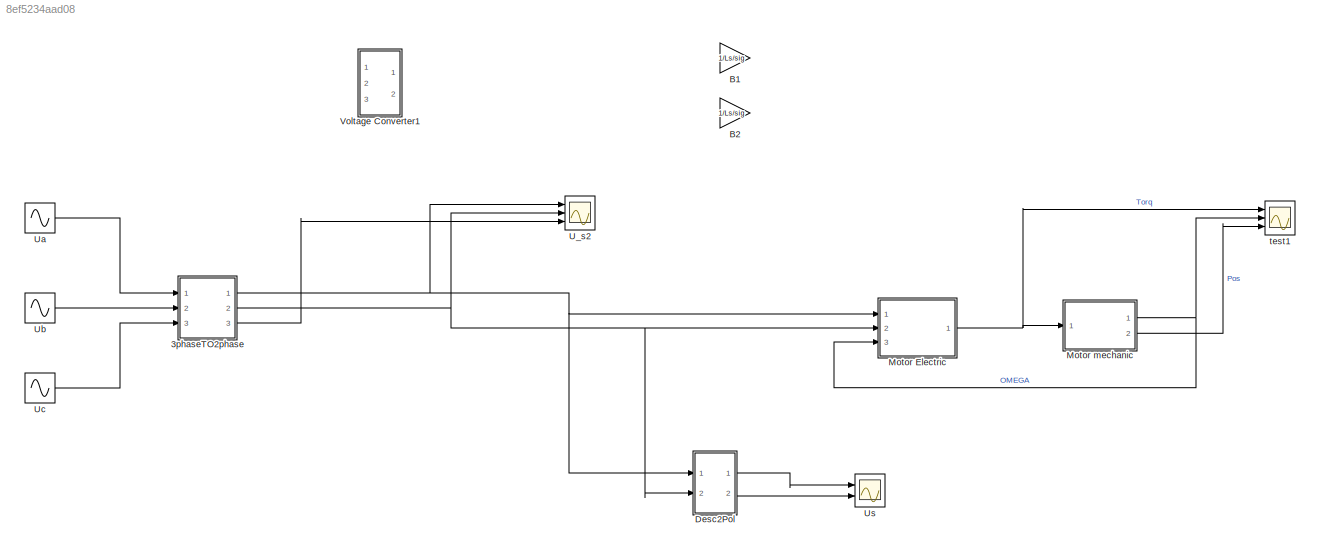
MODEL slx_8ef5234aad08
KIND model
CONFIG AbsTol = auto
CONFIG FixedStep = 0.0001
CONFIG MaxStep = auto
CONFIG MinStep = auto
CONFIG RelTol = 1e-3
CONFIG SampleTimeConstraint = Unconstrained
CONFIG Solver = FixedStepAuto
CONFIG SolverMode = Auto
CONFIG SolverName = FixedStepAuto
CONFIG StartTime = 0.0
CONFIG StopTime = 5
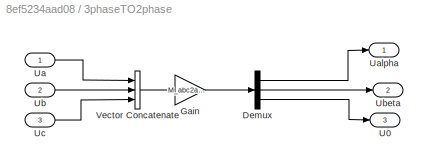
BLOCK [SubSystem] 3phaseTO2phase 
  Ports = [3, 3]
  RequestExecContextInheritance = off
  Variant = off
BLOCK [Demux] 3phaseTO2phase /Demux
  DisplayOption = bar
  Outputs = 3
  Ports = [1, 3]
BLOCK [Gain] 3phaseTO2phase /Gain
  Gain = M_abc2ab0
  Multiplication = Matrix(K*u)
  OutDataTypeStr = Inherit: Inherit via internal rule
  ParamDataTypeStr = Inherit: Inherit via internal rule
  SaturateOnIntegerOverflow = off
BLOCK [Outport] 3phaseTO2phase /U0
  IconDisplay = Port number
  Port = 3
BLOCK [Inport] 3phaseTO2phase /Ua
  IconDisplay = Port number
BLOCK [Outport] 3phaseTO2phase /Ualpha
  IconDisplay = Port number
BLOCK [Inport] 3phaseTO2phase /Ub
  IconDisplay = Port number
  Port = 2
BLOCK [Outport] 3phaseTO2phase /Ubeta
  IconDisplay = Port number
  Port = 2
BLOCK [Inport] 3phaseTO2phase /Uc
  IconDisplay = Port number
  Port = 3
BLOCK [Concatenate] 3phaseTO2phase /Vector Concatenate
  NumInputs = 3
  Ports = [3, 1]
BLOCK [Gain] B1
  Gain = 1/Ls/sig
  Multiplication = Matrix(K*u)
  OutDataTypeStr = Inherit: Inherit via internal rule
  ParamDataTypeStr = Inherit: Inherit via internal rule
  SaturateOnIntegerOverflow = off
BLOCK [Gain] B2
  Gain = 1/Ls/sig
  Multiplication = Matrix(K*u)
  OutDataTypeStr = Inherit: Inherit via internal rule
  ParamDataTypeStr = Inherit: Inherit via internal rule
  SaturateOnIntegerOverflow = off
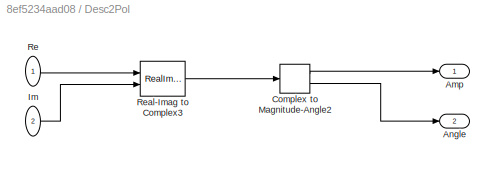
BLOCK [SubSystem] Desc2Pol
  Ports = [2, 2]
  RequestExecContextInheritance = off
  Variant = off
BLOCK [Outport] Desc2Pol/Amp
  IconDisplay = Port number
BLOCK [Outport] Desc2Pol/Angle
  IconDisplay = Port number
  Port = 2
BLOCK [ComplexToMagnitudeAngle] Desc2Pol/Complex to Magnitude-Angle2
  Ports = [1, 2]
BLOCK [Inport] Desc2Pol/Im
  IconDisplay = Port number
  Port = 2
BLOCK [Inport] Desc2Pol/Re
  IconDisplay = Port number
BLOCK [RealImagToComplex] Desc2Pol/Real-Imag to Complex3
  Ports = [2, 1]
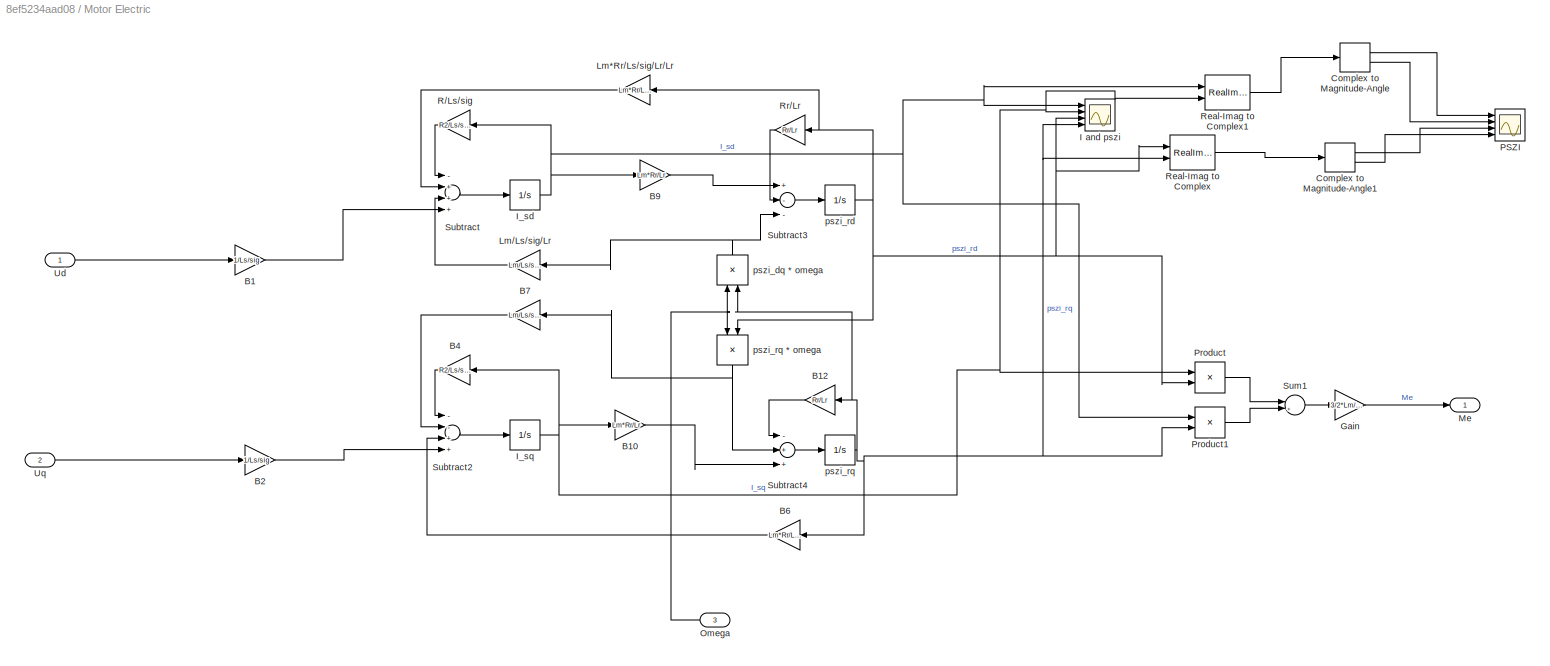
BLOCK [SubSystem] Motor Electric
  Ports = [3, 1]
  RequestExecContextInheritance = off
  Variant = off
BLOCK [Gain] Motor Electric/B1
  Gain = 1/Ls/sig
  Multiplication = Matrix(K*u)
  OutDataTypeStr = Inherit: Inherit via internal rule
  ParamDataTypeStr = Inherit: Inherit via internal rule
  SaturateOnIntegerOverflow = off
BLOCK [Gain] Motor Electric/B10
  Gain = Lm*Rr/Lr
  Multiplication = Matrix(K*u)
  OutDataTypeStr = Inherit: Inherit via internal rule
  ParamDataTypeStr = Inherit: Inherit via internal rule
  SaturateOnIntegerOverflow = off
BLOCK [Gain] Motor Electric/B12
  Gain = Rr/Lr
  Multiplication = Matrix(K*u)
  OutDataTypeStr = Inherit: Inherit via internal rule
  ParamDataTypeStr = Inherit: Inherit via internal rule
  SaturateOnIntegerOverflow = off
BLOCK [Gain] Motor Electric/B2
  Gain = 1/Ls/sig
  Multiplication = Matrix(K*u)
  OutDataTypeStr = Inherit: Inherit via internal rule
  ParamDataTypeStr = Inherit: Inherit via internal rule
  SaturateOnIntegerOverflow = off
BLOCK [Gain] Motor Electric/B4
  Gain = R2/Ls/sig
  Multiplication = Matrix(K*u)
  OutDataTypeStr = Inherit: Inherit via internal rule
  ParamDataTypeStr = Inherit: Inherit via internal rule
  SaturateOnIntegerOverflow = off
BLOCK [Gain] Motor Electric/B6
  Gain = Lm*Rr/Ls/sig/Lr/Lr
  Multiplication = Matrix(K*u)
  OutDataTypeStr = Inherit: Inherit via internal rule
  ParamDataTypeStr = Inherit: Inherit via internal rule
  SaturateOnIntegerOverflow = off
BLOCK [Gain] Motor Electric/B7
  Gain = Lm/Ls/sig/Lr
  Multiplication = Matrix(K*u)
  OutDataTypeStr = Inherit: Inherit via internal rule
  ParamDataTypeStr = Inherit: Inherit via internal rule
  SaturateOnIntegerOverflow = off
BLOCK [Gain] Motor Electric/B9
  Gain = Lm*Rr/Lr
  Multiplication = Matrix(K*u)
  OutDataTypeStr = Inherit: Inherit via internal rule
  ParamDataTypeStr = Inherit: Inherit via internal rule
  SaturateOnIntegerOverflow = off
BLOCK [ComplexToMagnitudeAngle] Motor Electric/Complex to Magnitude-Angle
  Ports = [1, 2]
BLOCK [ComplexToMagnitudeAngle] Motor Electric/Complex to Magnitude-Angle1
  Ports = [1, 2]
BLOCK [Gain] Motor Electric/Gain
  Gain = 3/2*Lm/Lr
  OutDataTypeStr = Inherit: Inherit via internal rule
  ParamDataTypeStr = Inherit: Inherit via internal rule
  SaturateOnIntegerOverflow = off
BLOCK [Scope] Motor Electric/I and pszi
  NumInputPorts = 4
  Ports = [4]
  ScopeSpecificationString = Simulink.scopes.TimeScopeBlockCfg('CurrentConfiguration', extmgr.ConfigurationSet(extmgr.Configuration('Core','General UI',true),extmgr.Configuration('Core','Source UI',true),extmgr.Configuration('Sources','WiredSimulink',true),extmgr.Configuration('Visuals','Time Domain',true,'SerializedDisplays',{struct('MinYLimReal','-96.38058','MaxYLimReal','113.50421','YLabelReal','','MinYLimMag','0.00000','M...<+1461ch>
BLOCK [Integrator] Motor Electric/I_sd
  Ports = [1, 1]
BLOCK [Integrator] Motor Electric/I_sq
  Ports = [1, 1]
BLOCK [Gain] Motor Electric/Lm*Rr//Ls//sig//Lr//Lr
  Gain = Lm*Rr/Ls/sig/Lr/Lr
  Multiplication = Matrix(K*u)
  OutDataTypeStr = Inherit: Inherit via internal rule
  ParamDataTypeStr = Inherit: Inherit via internal rule
  SaturateOnIntegerOverflow = off
BLOCK [Gain] Motor Electric/Lm//Ls//sig//Lr
  Gain = Lm/Ls/sig/Lr
  Multiplication = Matrix(K*u)
  OutDataTypeStr = Inherit: Inherit via internal rule
  ParamDataTypeStr = Inherit: Inherit via internal rule
  SaturateOnIntegerOverflow = off
BLOCK [Outport] Motor Electric/Me
  IconDisplay = Port number
BLOCK [Inport] Motor Electric/Omega
  IconDisplay = Port number
  Port = 3
BLOCK [Scope] Motor Electric/PSZI
  NumInputPorts = 4
  Ports = [4]
  ScopeSpecificationString = Simulink.scopes.TimeScopeBlockCfg('CurrentConfiguration', extmgr.ConfigurationSet(extmgr.Configuration('Core','General UI',true),extmgr.Configuration('Core','Source UI',true),extmgr.Configuration('Sources','WiredSimulink',true,'DataLoggingVariableName','ScopeData2'),extmgr.Configuration('Visuals','Time Domain',true,'SerializedDisplays',{struct('MinYLimReal','-15.09969','MaxYLimReal','104.48314','Y...<+1618ch>
BLOCK [Product] Motor Electric/Product
  InputSameDT = off
  OutDataTypeStr = Inherit: Inherit via internal rule
  Ports = [2, 1]
  RndMeth = Floor
  SaturateOnIntegerOverflow = off
BLOCK [Product] Motor Electric/Product1
  InputSameDT = off
  OutDataTypeStr = Inherit: Inherit via internal rule
  Ports = [2, 1]
  RndMeth = Floor
  SaturateOnIntegerOverflow = off
BLOCK [Gain] Motor Electric/R//Ls//sig
  Gain = R2/Ls/sig
  Multiplication = Matrix(K*u)
  OutDataTypeStr = Inherit: Inherit via internal rule
  ParamDataTypeStr = Inherit: Inherit via internal rule
  SaturateOnIntegerOverflow = off
BLOCK [RealImagToComplex] Motor Electric/Real-Imag to Complex
  Ports = [2, 1]
BLOCK [RealImagToComplex] Motor Electric/Real-Imag to Complex1
  Ports = [2, 1]
BLOCK [Gain] Motor Electric/Rr//Lr
  Gain = Rr/Lr
  Multiplication = Matrix(K*u)
  OutDataTypeStr = Inherit: Inherit via internal rule
  ParamDataTypeStr = Inherit: Inherit via internal rule
  SaturateOnIntegerOverflow = off
BLOCK [Sum] Motor Electric/Subtract
  InputSameDT = off
  Inputs = -+++
  OutDataTypeStr = Inherit: Inherit via internal rule
  Ports = [4, 1]
  SaturateOnIntegerOverflow = off
BLOCK [Sum] Motor Electric/Subtract2
  InputSameDT = off
  Inputs = --++
  OutDataTypeStr = Inherit: Inherit via internal rule
  Ports = [4, 1]
  SaturateOnIntegerOverflow = off
BLOCK [Sum] Motor Electric/Subtract3
  InputSameDT = off
  Inputs = +--
  OutDataTypeStr = Inherit: Inherit via internal rule
  Ports = [3, 1]
  SaturateOnIntegerOverflow = off
BLOCK [Sum] Motor Electric/Subtract4
  InputSameDT = off
  Inputs = -++
  OutDataTypeStr = Inherit: Inherit via internal rule
  Ports = [3, 1]
  SaturateOnIntegerOverflow = off
BLOCK [Sum] Motor Electric/Sum1
  IconShape = round
  InputSameDT = off
  Inputs = |+-|
  OutDataTypeStr = Inherit: Inherit via internal rule
  Ports = [2, 1]
  SaturateOnIntegerOverflow = off
BLOCK [Inport] Motor Electric/Ud
  IconDisplay = Port number
BLOCK [Inport] Motor Electric/Uq
  IconDisplay = Port number
  Port = 2
BLOCK [Product] Motor Electric/pszi_dq * omega
  InputSameDT = off
  OutDataTypeStr = Inherit: Inherit via internal rule
  Ports = [2, 1]
  RndMeth = Floor
  SaturateOnIntegerOverflow = off
BLOCK [Integrator] Motor Electric/pszi_rd
  Ports = [1, 1]
BLOCK [Integrator] Motor Electric/pszi_rq 
  Ports = [1, 1]
BLOCK [Product] Motor Electric/pszi_rq * omega
  InputSameDT = off
  OutDataTypeStr = Inherit: Inherit via internal rule
  Ports = [2, 1]
  RndMeth = Floor
  SaturateOnIntegerOverflow = off
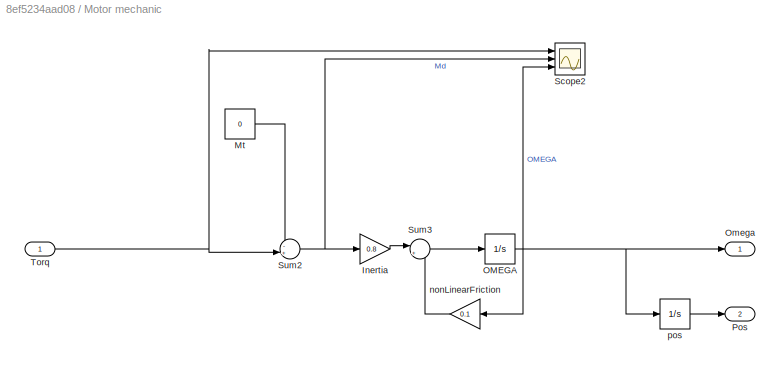
BLOCK [SubSystem] Motor mechanic
  Ports = [1, 2]
  RequestExecContextInheritance = off
  Variant = off
BLOCK [Gain] Motor mechanic/Inertia
  Gain = 0.8
  OutDataTypeStr = Inherit: Inherit via internal rule
  ParamDataTypeStr = Inherit: Inherit via internal rule
  SaturateOnIntegerOverflow = off
BLOCK [Constant] Motor mechanic/Mt
  Value = 0
BLOCK [Integrator] Motor mechanic/OMEGA
  Ports = [1, 1]
BLOCK [Outport] Motor mechanic/Omega
  IconDisplay = Port number
BLOCK [Outport] Motor mechanic/Pos
  IconDisplay = Port number
  Port = 2
BLOCK [Scope] Motor mechanic/Scope2
  NumInputPorts = 3
  Ports = [3]
  ScopeSpecificationString = Simulink.scopes.TimeScopeBlockCfg('CurrentConfiguration', extmgr.ConfigurationSet(extmgr.Configuration('Core','General UI',true),extmgr.Configuration('Core','Source UI',true),extmgr.Configuration('Sources','WiredSimulink',true,'DataLoggingVariableName','ScopeData2'),extmgr.Configuration('Visuals','Time Domain',true,'SerializedDisplays',{struct('MinYLimReal','90.00000','MaxYLimReal','110.00000','YL...<+2799ch>
BLOCK [Sum] Motor mechanic/Sum2
  IconShape = round
  InputSameDT = off
  Inputs = -+|
  OutDataTypeStr = Inherit: Inherit via internal rule
  Ports = [2, 1]
  SaturateOnIntegerOverflow = off
BLOCK [Sum] Motor mechanic/Sum3
  IconShape = round
  InputSameDT = off
  Inputs = |+-
  OutDataTypeStr = Inherit: Inherit via internal rule
  Ports = [2, 1]
  SaturateOnIntegerOverflow = off
BLOCK [Inport] Motor mechanic/Torq 
  IconDisplay = Port number
BLOCK [Gain] Motor mechanic/nonLinearFriction
  Gain = 0.1
  OutDataTypeStr = Inherit: Inherit via internal rule
  ParamDataTypeStr = Inherit: Inherit via internal rule
  SaturateOnIntegerOverflow = off
BLOCK [Integrator] Motor mechanic/pos
  Ports = [1, 1]
  WrapState = on
BLOCK [Scope] U_s2
  NumInputPorts = 3
  Ports = [3]
  ScopeSpecificationString = Simulink.scopes.TimeScopeBlockCfg('CurrentConfiguration', extmgr.ConfigurationSet(extmgr.Configuration('Core','General UI',true),extmgr.Configuration('Core','Source UI',true),extmgr.Configuration('Sources','WiredSimulink',true,'DataLoggingVariableName','ScopeData4'),extmgr.Configuration('Visuals','Time Domain',true,'SerializedDisplays',{struct('MinYLimReal','-99.99999','MaxYLimReal','99.99994','YL...<+1480ch>
BLOCK [Sin] Ua
  Amplitude = 80
  Frequency = 314
  Ports = [0, 1]
  SampleTime = 0
BLOCK [Sin] Ub
  Amplitude = 80
  Frequency = 314
  Phase = -2*pi/3
  Ports = [0, 1]
  SampleTime = 0
BLOCK [Sin] Uc
  Amplitude = 80
  Frequency = 314
  Phase = 2*pi/3
  Ports = [0, 1]
  SampleTime = 0
BLOCK [Scope] Us
  NumInputPorts = 2
  Ports = [2]
  ScopeSpecificationString = Simulink.scopes.TimeScopeBlockCfg('CurrentConfiguration', extmgr.ConfigurationSet(extmgr.Configuration('Core','General UI',true),extmgr.Configuration('Core','Source UI',true),extmgr.Configuration('Sources','WiredSimulink',true,'DataLoggingVariableName','ScopeData5'),extmgr.Configuration('Visuals','Time Domain',true,'SerializedDisplays',{struct('MinYLimReal','-100.00000','MaxYLimReal','100.00000','...<+1471ch>
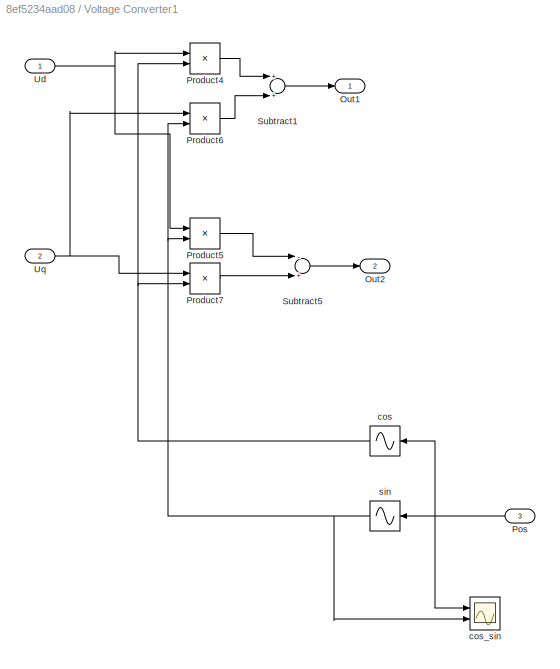
BLOCK [SubSystem] Voltage Converter1
  Ports = [3, 2]
  RequestExecContextInheritance = off
  Variant = off
BLOCK [Outport] Voltage Converter1/Out1
  IconDisplay = Port number
BLOCK [Outport] Voltage Converter1/Out2
  IconDisplay = Port number
  Port = 2
BLOCK [Inport] Voltage Converter1/Pos
  IconDisplay = Port number
  Port = 3
BLOCK [Product] Voltage Converter1/Product4
  InputSameDT = off
  OutDataTypeStr = Inherit: Inherit via internal rule
  Ports = [2, 1]
  RndMeth = Floor
  SaturateOnIntegerOverflow = off
BLOCK [Product] Voltage Converter1/Product5
  InputSameDT = off
  OutDataTypeStr = Inherit: Inherit via internal rule
  Ports = [2, 1]
  RndMeth = Floor
  SaturateOnIntegerOverflow = off
BLOCK [Product] Voltage Converter1/Product6
  InputSameDT = off
  OutDataTypeStr = Inherit: Inherit via internal rule
  Ports = [2, 1]
  RndMeth = Floor
  SaturateOnIntegerOverflow = off
BLOCK [Product] Voltage Converter1/Product7
  InputSameDT = off
  OutDataTypeStr = Inherit: Inherit via internal rule
  Ports = [2, 1]
  RndMeth = Floor
  SaturateOnIntegerOverflow = off
BLOCK [Sum] Voltage Converter1/Subtract1
  InputSameDT = off
  OutDataTypeStr = Inherit: Inherit via internal rule
  Ports = [2, 1]
  SaturateOnIntegerOverflow = off
BLOCK [Sum] Voltage Converter1/Subtract5
  InputSameDT = off
  Inputs = -+
  OutDataTypeStr = Inherit: Inherit via internal rule
  Ports = [2, 1]
  SaturateOnIntegerOverflow = off
BLOCK [Inport] Voltage Converter1/Ud
  IconDisplay = Port number
BLOCK [Inport] Voltage Converter1/Uq
  IconDisplay = Port number
  Port = 2
BLOCK [Sin] Voltage Converter1/cos
  Phase = +pi/2
  Ports = [1, 1]
  SampleTime = 0
  TimeSource = Use external signal
BLOCK [Scope] Voltage Converter1/cos_sin
  NumInputPorts = 2
  Ports = [2]
  ScopeSpecificationString = Simulink.scopes.TimeScopeBlockCfg('CurrentConfiguration', extmgr.ConfigurationSet(extmgr.Configuration('Core','General UI',true),extmgr.Configuration('Core','Source UI',true),extmgr.Configuration('Sources','WiredSimulink',true,'DataLoggingVariableName','ScopeData1'),extmgr.Configuration('Visuals','Time Domain',true,'SerializedDisplays',{struct('MinYLimReal','-0.0753','MaxYLimReal','0.6777','YLabel...<+1448ch>
BLOCK [Sin] Voltage Converter1/sin
  Ports = [1, 1]
  SampleTime = 0
  TimeSource = Use external signal
BLOCK [Scope] test1
  NumInputPorts = 3
  Ports = [3]
  ScopeSpecificationString = Simulink.scopes.TimeScopeBlockCfg('CurrentConfiguration', extmgr.ConfigurationSet(extmgr.Configuration('Core','General UI',true),extmgr.Configuration('Core','Source UI',true),extmgr.Configuration('Sources','WiredSimulink',true,'DataLoggingVariableName','ScopeData5'),extmgr.Configuration('Visuals','Time Domain',true,'SerializedDisplays',{struct('MinYLimReal','-52.80215','MaxYLimReal','156.76287','Y...<+1461ch>
LINE 3phaseTO2phase /Demux:1 -> 3phaseTO2phase /Ualpha:1
LINE 3phaseTO2phase /Demux:2 -> 3phaseTO2phase /Ubeta:1
LINE 3phaseTO2phase /Demux:3 -> 3phaseTO2phase /U0:1
LINE 3phaseTO2phase /Gain:1 -> 3phaseTO2phase /Demux:1
LINE 3phaseTO2phase /Ua:1 -> 3phaseTO2phase /Vector Concatenate:1
LINE 3phaseTO2phase /Ub:1 -> 3phaseTO2phase /Vector Concatenate:2
LINE 3phaseTO2phase /Uc:1 -> 3phaseTO2phase /Vector Concatenate:3
LINE 3phaseTO2phase /Vector Concatenate:1 -> 3phaseTO2phase /Gain:1
NET 3phaseTO2phase :1 -> Desc2Pol:1, Motor Electric:1, U_s2:1
NET 3phaseTO2phase :2 -> Desc2Pol:2, Motor Electric:2, U_s2:2
LINE 3phaseTO2phase :3 -> U_s2:3
LINE Desc2Pol/Complex to Magnitude-Angle2:1 -> Desc2Pol/Amp:1
LINE Desc2Pol/Complex to Magnitude-Angle2:2 -> Desc2Pol/Angle:1
LINE Desc2Pol/Im:1 -> Desc2Pol/Real-Imag to Complex3:2
LINE Desc2Pol/Re:1 -> Desc2Pol/Real-Imag to Complex3:1
LINE Desc2Pol/Real-Imag to Complex3:1 -> Desc2Pol/Complex to Magnitude-Angle2:1
LINE Desc2Pol:1 -> Us:1
LINE Desc2Pol:2 -> Us:2
LINE Motor Electric/B10:1 -> Motor Electric/Subtract4:3
LINE Motor Electric/B12:1 -> Motor Electric/Subtract4:1
LINE Motor Electric/B1:1 -> Motor Electric/Subtract:4
LINE Motor Electric/B2:1 -> Motor Electric/Subtract2:4
LINE Motor Electric/B4:1 -> Motor Electric/Subtract2:1
LINE Motor Electric/B6:1 -> Motor Electric/Subtract2:3
LINE Motor Electric/B7:1 -> Motor Electric/Subtract2:2
LINE Motor Electric/B9:1 -> Motor Electric/Subtract3:1
LINE Motor Electric/Complex to Magnitude-Angle1:1 -> Motor Electric/PSZI:3
LINE Motor Electric/Complex to Magnitude-Angle1:2 -> Motor Electric/PSZI:4
LINE Motor Electric/Complex to Magnitude-Angle:1 -> Motor Electric/PSZI:1
LINE Motor Electric/Complex to Magnitude-Angle:2 -> Motor Electric/PSZI:2
LINE Motor Electric/Gain:1 -> Motor Electric/Me:1
NET Motor Electric/I_sd:1 -> Motor Electric/B9:1, Motor Electric/I and pszi:1, Motor Electric/Product1:1, Motor Electric/R//Ls//sig:1, Motor Electric/Real-Imag to Complex1:1
NET Motor Electric/I_sq:1 -> Motor Electric/B10:1, Motor Electric/B4:1, Motor Electric/I and pszi:2, Motor Electric/Product:1, Motor Electric/Real-Imag to Complex1:2
LINE Motor Electric/Lm*Rr//Ls//sig//Lr//Lr:1 -> Motor Electric/Subtract:2
LINE Motor Electric/Lm//Ls//sig//Lr:1 -> Motor Electric/Subtract:3
NET Motor Electric/Omega:1 -> Motor Electric/pszi_dq * omega:1, Motor Electric/pszi_rq * omega:1
LINE Motor Electric/Product1:1 -> Motor Electric/Sum1:2
LINE Motor Electric/Product:1 -> Motor Electric/Sum1:1
LINE Motor Electric/R//Ls//sig:1 -> Motor Electric/Subtract:1
LINE Motor Electric/Real-Imag to Complex1:1 -> Motor Electric/Complex to Magnitude-Angle:1
LINE Motor Electric/Real-Imag to Complex:1 -> Motor Electric/Complex to Magnitude-Angle1:1
LINE Motor Electric/Rr//Lr:1 -> Motor Electric/Subtract3:2
LINE Motor Electric/Subtract2:1 -> Motor Electric/I_sq:1
LINE Motor Electric/Subtract3:1 -> Motor Electric/pszi_rd:1
LINE Motor Electric/Subtract4:1 -> Motor Electric/pszi_rq :1
LINE Motor Electric/Subtract:1 -> Motor Electric/I_sd:1
LINE Motor Electric/Sum1:1 -> Motor Electric/Gain:1
LINE Motor Electric/Ud:1 -> Motor Electric/B1:1
LINE Motor Electric/Uq:1 -> Motor Electric/B2:1
NET Motor Electric/pszi_dq * omega:1 -> Motor Electric/Lm//Ls//sig//Lr:1, Motor Electric/Subtract3:3
NET Motor Electric/pszi_rd:1 -> Motor Electric/I and pszi:3, Motor Electric/Lm*Rr//Ls//sig//Lr//Lr:1, Motor Electric/Product:2, Motor Electric/Real-Imag to Complex:1, Motor Electric/Rr//Lr:1, Motor Electric/pszi_rq * omega:2
NET Motor Electric/pszi_rq * omega:1 -> Motor Electric/B7:1, Motor Electric/Subtract4:2
NET Motor Electric/pszi_rq :1 -> Motor Electric/B12:1, Motor Electric/B6:1, Motor Electric/I and pszi:4, Motor Electric/Product1:2, Motor Electric/Real-Imag to Complex:2, Motor Electric/pszi_dq * omega:2
NET Motor Electric:1 -> Motor mechanic:1, test1:1
LINE Motor mechanic/Inertia:1 -> Motor mechanic/Sum3:1
LINE Motor mechanic/Mt:1 -> Motor mechanic/Sum2:1
NET Motor mechanic/OMEGA:1 -> Motor mechanic/Omega:1, Motor mechanic/Scope2:3, Motor mechanic/nonLinearFriction:1, Motor mechanic/pos:1
NET Motor mechanic/Sum2:1 -> Motor mechanic/Inertia:1, Motor mechanic/Scope2:2
LINE Motor mechanic/Sum3:1 -> Motor mechanic/OMEGA:1
NET Motor mechanic/Torq :1 -> Motor mechanic/Scope2:1, Motor mechanic/Sum2:2
LINE Motor mechanic/nonLinearFriction:1 -> Motor mechanic/Sum3:2
LINE Motor mechanic/pos:1 -> Motor mechanic/Pos:1
NET Motor mechanic:1 -> Motor Electric:3, test1:2
LINE Motor mechanic:2 -> test1:3
LINE Ua:1 -> 3phaseTO2phase :1
LINE Ub:1 -> 3phaseTO2phase :2
LINE Uc:1 -> 3phaseTO2phase :3
NET Voltage Converter1/Pos:1 -> Voltage Converter1/cos:1, Voltage Converter1/cos_sin:1, Voltage Converter1/sin:1
LINE Voltage Converter1/Product4:1 -> Voltage Converter1/Subtract1:1
LINE Voltage Converter1/Product5:1 -> Voltage Converter1/Subtract5:1
LINE Voltage Converter1/Product6:1 -> Voltage Converter1/Subtract1:2
LINE Voltage Converter1/Product7:1 -> Voltage Converter1/Subtract5:2
LINE Voltage Converter1/Subtract1:1 -> Voltage Converter1/Out1:1
LINE Voltage Converter1/Subtract5:1 -> Voltage Converter1/Out2:1
NET Voltage Converter1/Ud:1 -> Voltage Converter1/Product4:1, Voltage Converter1/Product5:1
NET Voltage Converter1/Uq:1 -> Voltage Converter1/Product6:1, Voltage Converter1/Product7:1
NET Voltage Converter1/cos:1 -> Voltage Converter1/Product4:2, Voltage Converter1/Product7:2
NET Voltage Converter1/sin:1 -> Voltage Converter1/Product5:2, Voltage Converter1/Product6:2, Voltage Converter1/cos_sin:2
note: NET lines group one-source signal fan-out (src -> all destinations, sorted); 1:1 wires keep LINE
